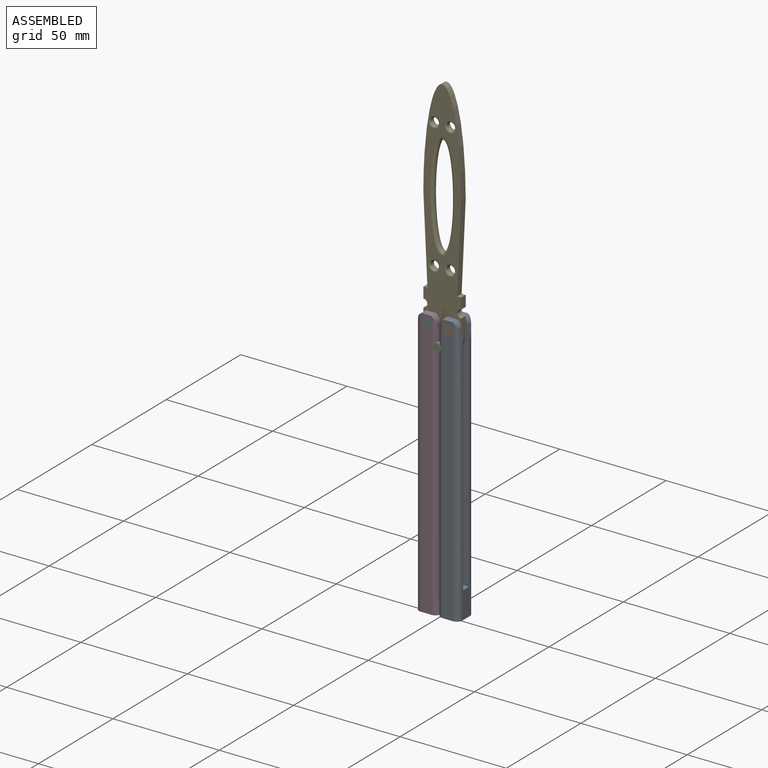
[diagram: assembled view]
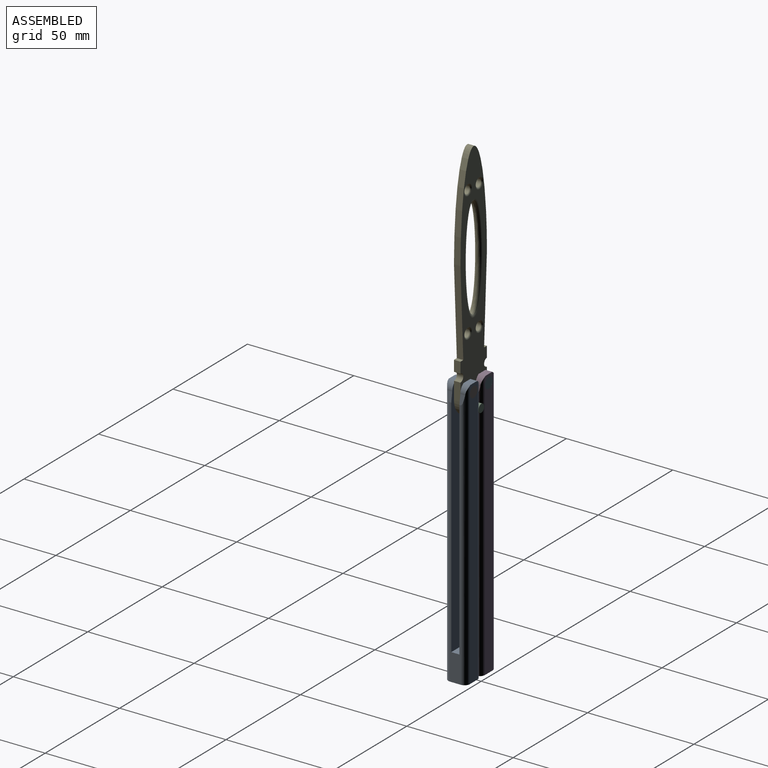
[diagram: assembled view, second angle]
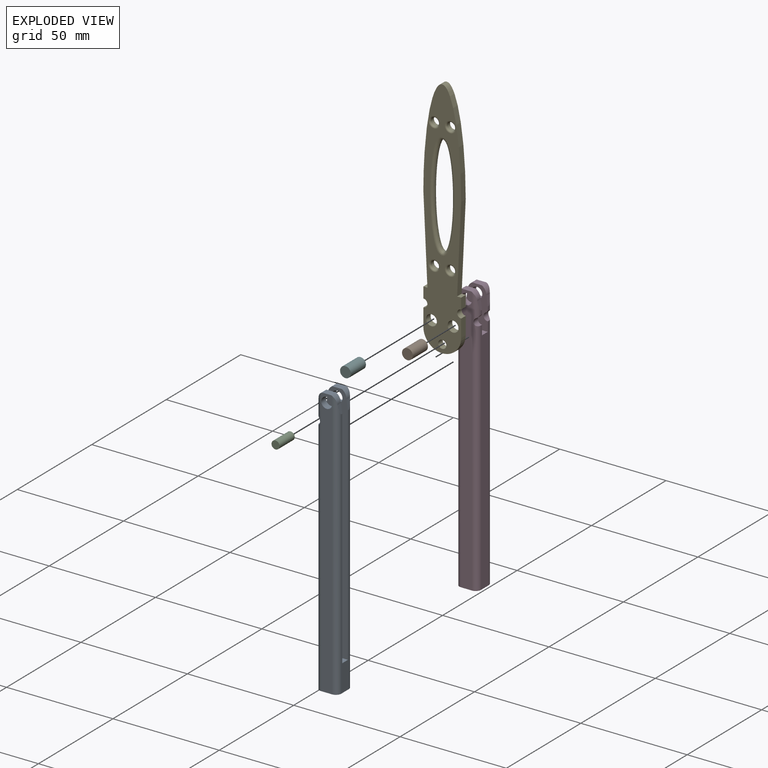
[diagram: exploded view]
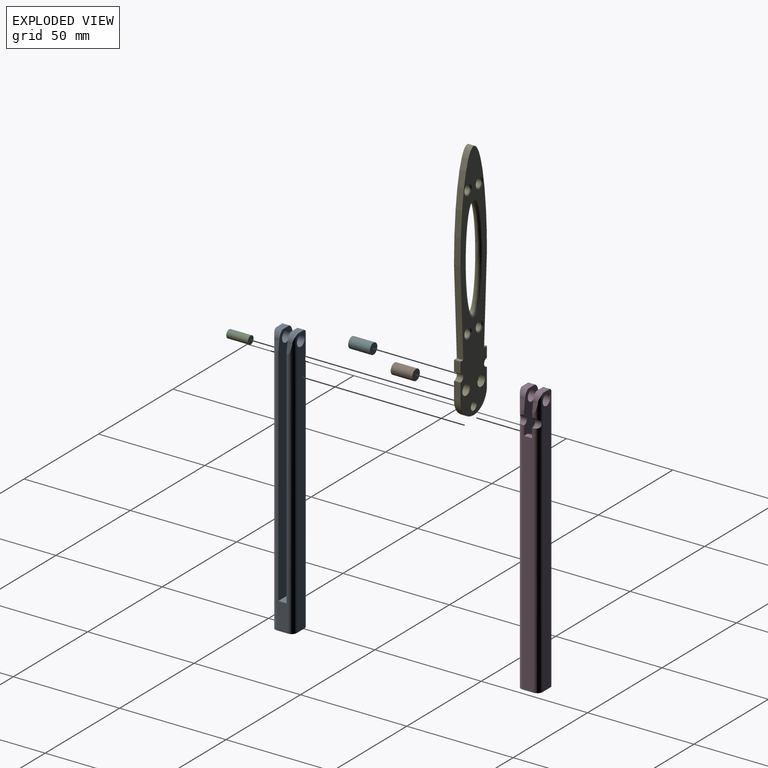
[diagram: exploded view, second angle]
ASSEMBLY  parts=6 mates=5
PART A: 34 faces, bbox 10.2x10.2x127 mm
  f0: plane 1.91x0.64mm, normal (1,0,0), area 1.2mm2, adj f4,f8,f25,f33
  f1: plane 1.91x0.64mm, normal (1,0,0), area 1.2mm2, adj f6,f9,f26,f31
  f2: plane 4.58x3.18mm, normal (0,0,1), area 14.5mm2, adj f9,f10,f27,f28
  f3: plane 4.58x3.18mm, normal (0,0,1), area 14.5mm2, adj f8,f11,f22,f24
  f4: cylinder r=2.54mm len=126.84mm, axis (0,0,1), area 479.7mm2, adj f0,f11,f14,f15,f16,f24,f25,f32
  f5: cylinder r=2.54mm len=126.84mm, axis (0,0,-1), area 491.4mm2, adj f11,f13,f15,f16,f22,f23
  f6: cylinder r=2.54mm len=126.84mm, axis (0,0,-1), area 479.7mm2, adj f1,f10,f14,f16,f17,f26,f27,f30
  f7: cylinder r=2.54mm len=126.84mm, axis (0,0,1), area 491.4mm2, adj f10,f13,f16,f17,f28,f29
  f8: plane 114.3x10.16mm, normal (0,-1,0), area 880.8mm2, adj f0,f3,f12,f13,f14,f19,f20,f21
  f9: plane 114.3x10.16mm, normal (0,1,0), area 880.8mm2, adj f1,f2,f12,f13,f14,f18,f20,f21
  f10: plane 5.08x3.81mm, normal (0,-1,0), area 9.2mm2, adj f2,f6,f7,f18,f27,f28
  f11: plane 5.08x3.81mm, normal (0,1,0), area 9.2mm2, adj f3,f4,f5,f19,f22,f24
  f12: plane 3.81x2.54mm, normal (0,0,1), area 9.7mm2, adj f8,f9,f14,f20
  f13: plane 118.75x5.08mm, normal (-1,0,0), area 199.2mm2, adj f5,f7,f8,f9,f16,f21,f23,f29
  f14: plane 112.4x5.08mm, normal (1,0,0), area 554mm2, adj f4,f6,f8,f9,f12,f16,f30,f32
  f15: plane 123.19x5.08mm, normal (0,1,0), area 615.7mm2, adj f4,f5,f16,f19
  f16: plane 10.16x10.16mm, normal (0,0,-1), area 97.7mm2, adj f4,f5,f6,f7,f13,f14,f15,f17
  f17: plane 123.19x5.08mm, normal (0,-1,0), area 615.7mm2, adj f6,f7,f16,f18
  f18: cylinder r=2.54mm len=5.08mm, axis (0,1,0), area 50.7mm2, adj f9,f10,f17
  f19: cylinder r=2.54mm len=5.08mm, axis (0,1,0), area 50.7mm2, adj f8,f11,f15
  f20: plane 95.25x3.81mm, normal (-1,0,0), area 362.9mm2, adj f8,f9,f12,f21
  f21: plane 7.62x3.81mm, normal (0,0,1), area 29mm2, adj f8,f9,f13,f20
  f22: cylinder r=4.45mm len=3.81mm, axis (0,-1,0), area 12.7mm2, adj f3,f5,f8,f11,f23
  f23: plane 4.45x2.32mm, normal (-0.99,0,0.14), area 8mm2, adj f5,f8,f13,f22
  f24: cylinder r=4.45mm len=3.81mm, axis (0,-1,0), area 12.7mm2, adj f3,f4,f8,f11,f25
  f25: plane 4.45x2.32mm, normal (0.99,0,0.14), area 8mm2, adj f0,f4,f8,f24
  f26: plane 4.45x2.32mm, normal (0.99,0,0.14), area 8mm2, adj f1,f6,f9,f27
  f27: cylinder r=4.45mm len=3.81mm, axis (0,-1,0), area 12.7mm2, adj f2,f6,f9,f10,f26
  f28: cylinder r=4.45mm len=3.81mm, axis (0,-1,0), area 12.7mm2, adj f2,f7,f9,f10,f29
  f29: plane 4.45x2.32mm, normal (-0.99,0,0.14), area 8mm2, adj f7,f9,f13,f28
  f30: cylinder r=1.91mm len=3.73mm, axis (0,-1,0), area 15mm2, adj f6,f9,f14,f31
  f31: plane 2.19x0.71mm, normal (0.8,0,-0.6), area 1.5mm2, adj f1,f6,f9,f30
  f32: cylinder r=1.91mm len=3.73mm, axis (0,-1,0), area 15mm2, adj f4,f8,f14,f33
  f33: plane 2.19x0.71mm, normal (0.8,0,-0.6), area 1.5mm2, adj f0,f4,f8,f32
PART B: 3 faces, bbox 5.1x10.2x5.1 mm
  f0: cylinder r=2.54mm len=10.16mm, axis (0,1,0), area 162.1mm2, adj f1,f2
  f1: plane 5.08x5.08mm, normal (0,-1,0), area 20.3mm2, adj f0
  f2: plane 5.08x5.08mm, normal (0,1,0), area 20.3mm2, adj f0
PART C: 3 faces, bbox 3.8x10.2x3.8 mm
  f0: cylinder r=1.91mm len=10.16mm, axis (0,1,0), area 121.6mm2, adj f1,f2
  f1: plane 3.81x3.81mm, normal (0,-1,0), area 11.4mm2, adj f0
  f2: plane 3.81x3.81mm, normal (0,1,0), area 11.4mm2, adj f0
PART D: same geometry as A
PART E: 32 faces, bbox 17.8x3x114.3 mm
  f0: plane 5.08x3.05mm, normal (1,0,0), area 15.5mm2, adj f1,f2,f10,f13
  f1: plane 114.3x17.78mm, normal (0,-1,0), area 1122.8mm2, adj f0,f3,f4,f5,f6,f7,f8,f9
  f2: plane 114.3x17.78mm, normal (0,1,0), area 1122.3mm2, adj f0,f3,f4,f5,f6,f7,f8,f9
  f3: plane 5.08x3.05mm, normal (-1,0,0), area 15.5mm2, adj f1,f2,f11,f14
  f4: plane 8.26x3.05mm, normal (-1,0,0), area 25.2mm2, adj f1,f2,f8,f11
  f5: plane 8.26x3.05mm, normal (1,0,0), area 25.2mm2, adj f1,f2,f8,f10
  f6: cylinder r=2.54mm len=5.08mm, axis (0,-1,0), area 48.6mm2, adj f1,f2
  f7: cylinder r=2.54mm len=5.08mm, axis (0,-1,0), area 48.6mm2, adj f1,f2
  f8: cylinder r=8.89mm len=17.78mm, axis (0,-1,0), area 85.1mm2, adj f1,f2,f4,f5
  f9: extruded ~47.63x17.78mm, area 303.5mm2, adj f1,f2,f12,f15
  f10: cylinder r=1.91mm len=3.81mm, axis (0,-1,0), area 18.2mm2, adj f0,f1,f2,f5
  f11: cylinder r=1.91mm len=3.81mm, axis (0,-1,0), area 18.2mm2, adj f1,f2,f3,f4
  f12: plane 40.64x3.05mm, normal (1,0,-0.05), area 124mm2, adj f1,f2,f9,f13
  f13: plane 3.05x1.91mm, normal (0,0,1), area 5.8mm2, adj f0,f1,f2,f12
  f14: plane 3.05x1.91mm, normal (0,0,1), area 5.8mm2, adj f1,f2,f3,f15
  f15: plane 40.64x3.05mm, normal (-1,0,-0.05), area 124mm2, adj f1,f2,f9,f14
  f16: extruded ~47.61x8.89mm, area 50.6mm2, adj f17,f18
  f17: bspline ~50.17x11.43mm, area 204.4mm2, adj f2,f16
  f18: bspline ~50.17x11.43mm, area 204.4mm2, adj f1,f16
  f19: cylinder r=1.91mm len=3.81mm, axis (0,-1,0), area 18.2mm2, adj f26,f30
  f20: cylinder r=1.91mm len=3.81mm, axis (0,-1,0), area 18.2mm2, adj f25,f27
  f21: cylinder r=1.91mm len=3.81mm, axis (0,-1,0), area 18.2mm2, adj f24,f28
  f22: cylinder r=1.91mm len=3.81mm, axis (0,-1,0), area 18.2mm2, adj f23,f29
  f23: torus R=2.67mm, axis (0,-1,0), area 16.4mm2, adj f2,f22
  f24: torus R=2.67mm, axis (0,-1,0), area 16.4mm2, adj f2,f21
  f25: torus R=2.67mm, axis (0,-1,0), area 16.4mm2, adj f2,f20
  f26: torus R=2.67mm, axis (0,-1,0), area 16.4mm2, adj f2,f19
  f27: torus R=2.67mm, axis (0,-1,0), area 16.4mm2, adj f1,f20
  f28: torus R=2.67mm, axis (0,-1,0), area 16.4mm2, adj f1,f21
  f29: torus R=2.67mm, axis (0,-1,0), area 16.4mm2, adj f1,f22
  f30: torus R=2.67mm, axis (0,-1,0), area 16.4mm2, adj f1,f19
  f31: cylinder r=1.91mm len=3.81mm, axis (0,-1,0), area 36.5mm2, adj f1,f2
PART F: same geometry as B
PLACE A rot(axis=(0,0,1),180deg) t=(-36.86,-8.04,-131.37)mm
PLACE B t=(-41.94,2.12,-8.18)mm
PLACE C t=(-47.02,2.12,-17.07)mm
PLACE D t=(-57.18,2.12,-131.37)mm
PLACE E t=(-55.91,-1.44,-8.18)mm fixed
PLACE F t=(-52.1,2.12,-8.18)mm
MATE fastened F.f0 <-> E.f7  axis (0,1,0) through (-52.1,-2.96,-8.18)mm
MATE revolute D.f18 <-> F.f0  axis (0,-1,0) through (-52.1,-8.04,-8.18)mm
MATE revolute A.f18 <-> B.f0  axis (0,-1,0) through (-41.94,-8.04,-8.18)mm
MATE fastened C.f0 <-> E.f31  axis (0,1,0) through (-47.02,-2.96,-17.07)mm
MATE fastened B.f0 <-> E.f6  axis (0,1,0) through (-41.94,-2.96,-8.18)mm
